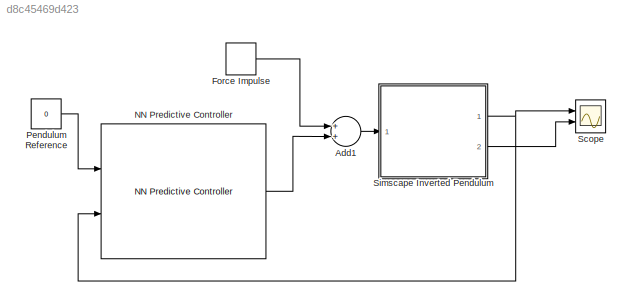
MODEL slx_d8c45469d423
KIND model
BLOCK [Sum] Add1
  InputSameDT = off
  OutDataTypeStr = Inherit: Inherit via internal rule
  Ports = [2, 1]
  SaturateOnIntegerOverflow = off
BLOCK [DiscretePulseGenerator] Force Impulse
  Amplitude = 1000
  Period = 10
  Ports = [0, 1]
  PulseType = Time based
  PulseWidth = 0.01
BLOCK [Reference] NN Predictive Controller  REF=neural/Control Systems/NN Predictive Controller
  B1 = [3.4229281290107396;1.4885006445197408;-0.78178922136363049;0.15468020926256307;0.88460328618358486;-1.9180026772347927;2.6292228329429768]
  B2 = 1.1926159034565735
  IW = [-0.51670339428008627 0.30216359067953968;0.063122064876303174 0.49648019761152751;-0.6011959254398701 0.51569845008084003;-0.33496484915941738 -0.21162981637168918;-1.1329233033622921 -0.79955533605292672;0.94071285967693519 0.41836714397439778;-0.8832550776227267 -0.76281244763460665]
  LW1_2 = [0.69782203805873777 -0.37077760385034442;0.34312334132666389 -0.89671763633998636;1.6999968221153436 -1.1019765395365144;-0.70848254525935916 0.23592009404776221;0.095950316508265771 -0.1506748459104448;0.39004078391021679 1.6160842305809311;0.45342855029825024 -0.028915641644308984]
  LW2_1 = [0.062190244781024681 -1.1043642367666291 1.377462760855878 -1.1466470424192063 -0.44306710436770214 -0.209459787239196 -0.032425765365737637]
  N2 = 7
  Ni = 2
  Nj = 2
  Normalize = 0
  Nu = 2
  Ports = [2, 1]
  S1 = 7
  SourceBlock = neural/Control Systems/NN Predictive Controller
  SourceType = NN Predictive Controller
  Ts = 0.2
  Use_Previous_Weights = 1
  Use_Testing = 0
  Use_validation = 1
  alpha = 0.001
  csrchfun = csrchbac
  epochs = 200
  limit_output = 0
  max_i = 5
  max_i_int = 20
  max_output = Inf
  maxiter = 2
  maxp = 4.2831306231418793
  maxt = 4.2831306231418793
  min_i = -5
  min_i_int = 5
  min_output = -Inf
  minp = -4.1651718639737734
  mint = -3.1344028951578671
  rho = 0.05
  sam_training = 500
  sim_file = Pend_Model_Simscape_oneout
  trainfun = trainlm
BLOCK [Constant] Pendulum Reference
  Value = 0
BLOCK [Scope] Scope
  DataFormat = StructureWithTime
  Floating = off
  NumInputPorts = 2
  Ports = [2]
  SampleTime = 0
  ShowLegends = off
  YMax = 5~5
  YMin = -5~-5
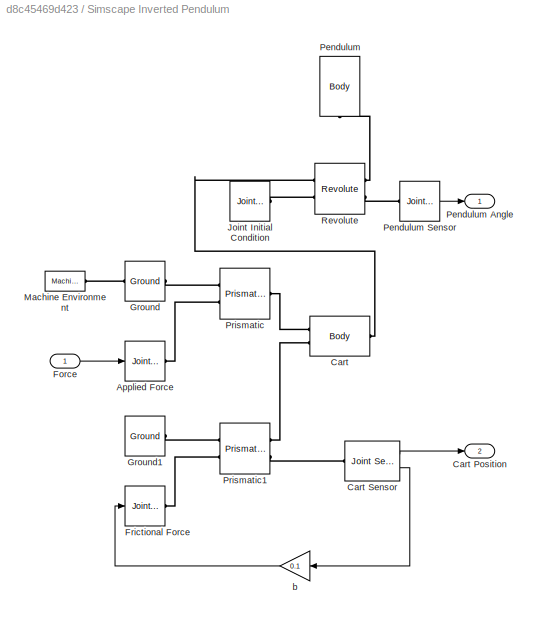
BLOCK [SubSystem] Simscape Inverted Pendulum
  FunctionWithSeparateData = off
  MaskHideContents = off
  MinAlgLoopOccurrences = off
  Opaque = off
  Ports = [1, 2]
  PropExecContextOutsideSubsystem = off
  RTWSystemCode = Auto
  RequestExecContextInheritance = off
BLOCK [Reference] Simscape Inverted Pendulum/Applied Force  REF=mblibv1/Sensors & 
Actuators/Joint Actuator
  AccelerationUnits = m/s^2
  ActiveIO = on
  ActuationStyle = Force
  AngleUnits = deg
  ArcAccelerationUnits = deg/s^2
  ArcVelocityUnits = deg/s
  ClassName = JointActuator
  CoordPositionUnits = m
  DialogClass = MechanicalActuatorBlock
  ForceUnits = N
  PhysicalDomain = Mechanical
  PortType = blob
  Ports = [1, 0, 0, 0, 0, 0, 1]
  Primitive = P1
  ReferenceFrame = Absolute (World)
  SourceBlock = mblibv1/Sensors & \nActuators/Joint Actuator
  SourceType = Joint Actuator
  TorqueUnits = N-m
  UpdateFromCAD = off
  VelocityUnits = m/s
  Width = 1
BLOCK [Reference] Simscape Inverted Pendulum/Cart  REF=mblibv1/Bodies/Body
  AttachedToCS = CG
  BodyColor = [1 0 0]
  BodyColorSelMode = MACHINE_DEFAULT
  CG = Left$CG$[0 0 0]$WORLD$WORLD$m$[0 0 0]$Euler X-Y-Z$deg$WORLD$false$none
  CGPos = [0 0 0]
  CGRot = [0 0 0]
  CS0Pos = []
  CS0Rot = []
  CS10Pos = []
  CS10Rot = []
  CS11Pos = []
  CS11Rot = []
  CS12Pos = []
  CS12Rot = []
  CS13Pos = []
  CS13Rot = []
  CS14Pos = []
  CS14Rot = []
  CS15Pos = []
  CS15Rot = []
  CS16Pos = []
  CS16Rot = []
  CS17Pos = []
  CS17Rot = []
  CS18Pos = []
  CS18Rot = []
  CS19Pos = []
  CS19Rot = []
  CS1Pos = [-1 0 0]
  CS1Rot = [0 0 0]
  CS20Pos = []
  CS20Rot = []
  CS2Pos = [0 0 0]
  CS2Rot = [0 0 0]
  CS3Pos = [0 0.5 0]
  CS3Rot = [0 0 0]
  CS4Pos = [-1 0.5 0]
  CS4Rot = [0 0 0]
  CS5Pos = [-1 -0.5 0]
  CS5Rot = [0 0 0]
  CS6Pos = [1 -0.5 0]
  CS6Rot = [0 0 0]
  CS7Pos = [1 0.5 0]
  CS7Rot = [0 0 0]
  CS8Pos = []
  CS8Rot = []
  CS9Pos = []
  CS9Rot = []
  ClassName = Body
  Density = 1
  DensityUnits = kg/m^3
  DensityUse = false
  DialogClass = MechanicalBodyBlock
  GraphicsMode = MACHINE_DEFAULT
  Inertia = eye(3)
  InertiaUnits = kg*m^2
  LConnTagsString = CS1|CS2
  Mass = 0.5
  MassUnits = kg
  Ports = [0, 0, 0, 0, 0, 2, 1]
  RConnTagsString = CS3
  Shape = Cylinder
  ShapeDims = [1 1]
  ShapeUnits = m
  ShapeUse = false
  SourceBlock = mblibv1/Bodies/Body
  SourceType = Body
  UpdateFromCAD = off
  WorkingFrames = Left$CS1$[-1 0 0]$CG$CG$m$[0 0 0]$Euler X-Y-Z$deg$WORLD$true$none#Left$CS2$[0 0 0]$CG$CG$m$[0 0 0]$Euler X-Y-Z$deg$WORLD$true$none#Right$CS3$[0 0.5 0]$CG$CG$m$[0 0 0]$Euler X-Y-Z$deg$WORLD$true$none#Right$CS4$[-1 0.5 0]$CG$CG$m$[0 0 0]$Euler X-Y-Z$deg$WORLD$false$none#Right$CS5$[-1 -0.5 0]$CG$CG$m$[0 0 0]$Euler X-Y-Z$deg$WORLD$false$none#Right$CS6$[1 -0.5 0]$CG$CG$m$[0 0 0]$Euler X-Y-Z$deg$WORLD$f...<+78ch>
BLOCK [Outport] Simscape Inverted Pendulum/Cart Position
  IconDisplay = Port number
  Port = 2
BLOCK [Reference] Simscape Inverted Pendulum/Cart Sensor  REF=mblibv1/Sensors & 
Actuators/Joint Sensor
  Acceleration = off
  AccelerationUnits = m/s^2
  ActiveIO = on
  Angle = on
  AngleUnits = deg
  ArcAcceleration = off
  ArcAccelerationUnits = deg/s^2
  ArcVelocity = off
  ArcVelocityUnits = deg/s
  ClassName = JointSensor
  CoordPosition = on
  CoordPositionUnits = m
  DialogClass = MechanicalSensorBlock
  Force = off
  ForceUnits = N
  Muxed = off
  OutputVector = [1]
  PhysicalDomain = Mechanical
  PortType = blob
  Ports = [0, 2, 0, 0, 0, 1]
  Pose = off
  Primitive = P1
  Quaternion = on
  QuaternionDDT = off
  QuaternionDT = off
  QuaternionUnits = off
  ReactionForce = off
  ReactionForceUnits = N
  ReactionMoment = off
  ReactionMomentUnits = N*m
  ReactionReferenceFrame = Absolute (World)
  ReactionSensedSide = Base
  ReferenceFrame = Absolute (World)
  SourceBlock = mblibv1/Sensors & \nActuators/Joint Sensor
  SourceType = Joint Sensor
  Torque = off
  TorqueUnits = N*m
  UpdateFromCAD = off
  Velocity = on
  VelocityUnits = m/s
  Width = 2
BLOCK [Inport] Simscape Inverted Pendulum/Force
  IconDisplay = Port number
BLOCK [Reference] Simscape Inverted Pendulum/Frictional Force  REF=mblibv1/Sensors & 
Actuators/Joint Actuator
  AccelerationUnits = m/s^2
  ActiveIO = on
  ActuationStyle = Force
  AngleUnits = deg
  ArcAccelerationUnits = deg/s^2
  ArcVelocityUnits = deg/s
  ClassName = JointActuator
  CoordPositionUnits = m
  DialogClass = MechanicalActuatorBlock
  ForceUnits = N
  PhysicalDomain = Mechanical
  PortType = blob
  Ports = [1, 0, 0, 0, 0, 0, 1]
  Primitive = P1
  ReferenceFrame = Absolute (World)
  SourceBlock = mblibv1/Sensors & \nActuators/Joint Actuator
  SourceType = Joint Actuator
  TorqueUnits = N*m
  UpdateFromCAD = off
  VelocityUnits = m/s
  Width = 1
BLOCK [Reference] Simscape Inverted Pendulum/Ground  REF=mblibv1/Bodies/Ground
  ClassName = Ground
  CoordPosition = [0 0 0]
  CoordPositionUnits = m
  DialogClass = GroundBlock
  LeftPortType = env
  MachineId = [0 0]
  PhysicalDomain = Mechanical
  Ports = [0, 0, 0, 0, 0, 1, 1]
  RightPortType = workingframe
  ShowEnvPort = on
  SourceBlock = mblibv1/Bodies/Ground
  SourceType = Ground
  StateVectorMgrId = -1
  UpdateFromCAD = off
  UserDataPersistent = on
BLOCK [Reference] Simscape Inverted Pendulum/Ground1  REF=mblibv1/Bodies/Ground
  ClassName = Ground
  CoordPosition = [0 0 0]
  CoordPositionUnits = m
  DialogClass = GroundBlock
  LeftPortType = env
  MachineId = [0 0]
  PhysicalDomain = Mechanical
  Ports = [0, 0, 0, 0, 0, 0, 1]
  RightPortType = workingframe
  ShowEnvPort = off
  SourceBlock = mblibv1/Bodies/Ground
  SourceType = Ground
  StateVectorMgrId = -1
  UpdateFromCAD = off
  UserDataPersistent = on
BLOCK [Reference] Simscape Inverted Pendulum/Joint Initial Condition  REF=mblibv1/Sensors & 
Actuators/Joint Initial Condition
  ClassName = InitialCondition
  DialogClass = InitialConditionBlock
  InitialConditions = P1$false$0$m$deg$0$m/s$deg/s#P2$false$0$m$deg$0$m/s$deg/s#P3$false$0$m$deg$0$m/s$deg/s#R1$true$0$m$deg$0$m/s$deg/s#R2$false$0$m$deg$0$m/s$deg/s#R3$false$0$m$deg$0$m/s$deg/s#S$false$0$m$deg$0$m/s$deg/s
  LeftPortType = blob
  P1PIC = 0
  P1VIC = 0
  P2PIC = 0
  P2VIC = 0
  P3PIC = 0
  P3VIC = 0
  PhysicalDomain = mechanical
  Ports = [0, 0, 0, 0, 0, 0, 1]
  R1PIC = 0
  R1VIC = 0
  R2PIC = 0
  R2VIC = 0
  R3PIC = 0
  R3VIC = 0
  RightPortType = blob
  SPIC = 0
  SVIC = 0
  SourceBlock = mblibv1/Sensors & \nActuators/Joint Initial Condition
  SourceType = Joint Initial Condition
  UpdateFromCAD = off
BLOCK [Reference] Simscape Inverted Pendulum/Machine Environment  REF=mblibv1/Bodies/Machine
Environment
  AnalysisType = Forward dynamics
  AngularAssemblyTolerance = 1e-3
  AngularAssemblyToleranceUnits = rad
  BodyColorSelMode = Use model default
  BodyVisualizationType = Use model default body geometries
  ClassName = Environment
  ConstraintAbsTolerance = 1e-4
  ConstraintRelTolerance = 1e-4
  ConstraintSolverType = Stabilizing
  DefaultBodyColor = [1 0 0]
  DialogTemplateClass = MECH.MachineEnvironment
  Dimensionality = Auto-detect
  Gravity = [0 -9.81 0]
  GravityAsSignal = off
  GravityUnits = m/s^2
  LinearAssemblyTolerance = 1e-3
  LinearAssemblyToleranceUnits = m
  PerturbationSize = 1e-5
  PhysicalDomain = Mechanical
  PortType = env
  Ports = [0, 0, 0, 0, 0, 0, 1]
  RedundancyAnalysisTolerance = 1e-14
  RedundancyAnalysisToleranceType = Automatically select tolerance
  SourceBlock = mblibv1/Bodies/Machine\nEnvironment
  SourceType = Machine Environment
  StatePerturbationType = Fixed
  SyncWhenCopied = off
  UseRobustSingularityHandling = off
  VisualizeMachine = on
BLOCK [Reference] Simscape Inverted Pendulum/Pendulum  REF=mblibv1/Bodies/Body
  AttachedToCS = CG
  BodyColor = [0.078431 0.16863 0.54902]
  BodyColorSelMode = COLORPALETTE
  CG = Left$CG$[0 0.3 0]$CS1$CS1$m$[0 0 0]$Euler X-Y-Z$deg$WORLD$false$none
  CGPos = [0 0.3 0]
  CGRot = [0 0 0]
  CS0Pos = []
  CS0Rot = []
  CS10Pos = []
  CS10Rot = []
  CS11Pos = []
  CS11Rot = []
  CS12Pos = []
  CS12Rot = []
  CS13Pos = []
  CS13Rot = []
  CS14Pos = []
  CS14Rot = []
  CS15Pos = []
  CS15Rot = []
  CS16Pos = []
  CS16Rot = []
  CS17Pos = []
  CS17Rot = []
  CS18Pos = []
  CS18Rot = []
  CS19Pos = []
  CS19Rot = []
  CS1Pos = [0 0 0]
  CS1Rot = [0 0 0]
  CS20Pos = []
  CS20Rot = []
  CS2Pos = [0.1 0 0]
  CS2Rot = [0 0 0]
  CS3Pos = [-0.1 0 0]
  CS3Rot = [0 0 0]
  CS4Pos = [-0.1 0.6 0]
  CS4Rot = [0 0 0]
  CS5Pos = [0.1 0.6 0]
  CS5Rot = [0 0 0]
  CS6Pos = []
  CS6Rot = []
  CS7Pos = []
  CS7Rot = []
  CS8Pos = []
  CS8Rot = []
  CS9Pos = []
  CS9Rot = []
  ClassName = Body
  Density = 1
  DensityUnits = kg/m^3
  DensityUse = false
  DialogClass = MechanicalBodyBlock
  GraphicsMode = MACHINE_DEFAULT
  Inertia = 0.006*eye(3)
  InertiaUnits = kg*m^2
  LConnTagsString = CS1
  Mass = 0.2
  MassUnits = kg
  Ports = [0, 0, 0, 0, 0, 1]
  Shape = Cylinder
  ShapeDims = [1 1]
  ShapeUnits = m
  ShapeUse = false
  SourceBlock = mblibv1/Bodies/Body
  SourceType = Body
  UpdateFromCAD = off
  WorkingFrames = Left$CS1$[0 0 0]$Adjoining$Adjoining$m$[0 0 0]$Euler X-Y-Z$deg$WORLD$true$none#Right$CS2$[0.1 0 0]$CS1$CS1$m$[0 0 0]$Euler X-Y-Z$deg$WORLD$false$none#Right$CS3$[-0.1 0 0]$CS1$CS1$m$[0 0 0]$Euler X-Y-Z$deg$WORLD$false$none#Right$CS4$[-0.1 0.6 0]$CS1$CS1$m$[0 0 0]$Euler X-Y-Z$deg$WORLD$false$none#Right$CS5$[0.1 0.6 0]$CS1$CS1$m$[0 0 0]$Euler X-Y-Z$deg$WORLD$false$none
BLOCK [Outport] Simscape Inverted Pendulum/Pendulum Angle
  IconDisplay = Port number
BLOCK [Reference] Simscape Inverted Pendulum/Pendulum Sensor  REF=mblibv1/Sensors & 
Actuators/Joint Sensor
  Acceleration = off
  AccelerationUnits = m/s^2
  ActiveIO = on
  Angle = on
  AngleUnits = rad
  ArcAcceleration = off
  ArcAccelerationUnits = deg/s^2
  ArcVelocity = off
  ArcVelocityUnits = deg/s
  ClassName = JointSensor
  CoordPosition = on
  CoordPositionUnits = m
  DialogClass = MechanicalSensorBlock
  Force = off
  ForceUnits = N
  Muxed = on
  OutputVector = [1]
  PhysicalDomain = Mechanical
  PortType = blob
  Ports = [0, 1, 0, 0, 0, 1]
  Pose = off
  Primitive = R1
  Quaternion = on
  QuaternionDDT = off
  QuaternionDT = off
  QuaternionUnits = off
  ReactionForce = off
  ReactionForceUnits = N
  ReactionMoment = off
  ReactionMomentUnits = N*m
  ReactionReferenceFrame = Absolute (World)
  ReactionSensedSide = Base
  ReferenceFrame = Absolute (World)
  SourceBlock = mblibv1/Sensors & \nActuators/Joint Sensor
  SourceType = Joint Sensor
  Torque = off
  TorqueUnits = N*m
  UpdateFromCAD = off
  Velocity = off
  VelocityUnits = m/s
  Width = 1
BLOCK [Reference] Simscape Inverted Pendulum/Prismatic  REF=mblibv1/Joints/Prismatic
  ClassName = Joint
  CutJoint = off
  DialogClass = JointBlock
  LConnTagsString = __newl0|SA1
  MarkAsCut = off
  NumSAPorts = 1
  P1Axis = [1 0 0]
  Ports = [0, 0, 0, 0, 0, 2, 1]
  PrimitiveProps = P1$World$[1 0 0]$prismatic
  Primitives = prismatic
  RConnTagsString = __newr0
  SourceBlock = mblibv1/Joints/Prismatic
  SourceType = Prismatic
  UpdateFromCAD = off
BLOCK [Reference] Simscape Inverted Pendulum/Prismatic1  REF=mblibv1/Joints/Prismatic
  ClassName = Joint
  CutJoint = off
  DialogClass = JointBlock
  LConnTagsString = __newl0|SA1
  MarkAsCut = off
  NumSAPorts = 2
  P1Axis = [1 0 0]
  Ports = [0, 0, 0, 0, 0, 2, 2]
  PrimitiveProps = P1$World$[1 0 0]$prismatic
  Primitives = prismatic
  RConnTagsString = __newr0|SA1
  SourceBlock = mblibv1/Joints/Prismatic
  SourceType = Prismatic
  UpdateFromCAD = off
BLOCK [Reference] Simscape Inverted Pendulum/Revolute  REF=mblibv1/Joints/Revolute
  ClassName = Joint
  CutJoint = off
  DialogClass = JointBlock
  LConnTagsString = __newl0|SA1
  MarkAsCut = off
  NumSAPorts = 2
  Ports = [0, 0, 0, 0, 0, 2, 2]
  PrimitiveProps = R1$World$[0 0 1]$revolute
  Primitives = prismatic
  R1Axis = [0 0 1]
  RConnTagsString = __newr0|SA1
  SourceBlock = mblibv1/Joints/Revolute
  SourceType = Revolute
  UpdateFromCAD = off
BLOCK [Gain] Simscape Inverted Pendulum/b
  Gain = 0.1
  OutDataTypeStr = Inherit: Inherit via internal rule
  ParamDataTypeStr = Inherit: Inherit via internal rule
  SaturateOnIntegerOverflow = off
LINE Add1:1 -> Simscape Inverted Pendulum:1
LINE Force Impulse:1 -> Add1:1
LINE NN Predictive Controller:1 -> Add1:2
LINE Pendulum Reference:1 -> NN Predictive Controller:1
LINE Simscape Inverted Pendulum/Cart Sensor:1 -> Simscape Inverted Pendulum/Cart Position:1
LINE Simscape Inverted Pendulum/Cart Sensor:2 -> Simscape Inverted Pendulum/b:1
LINE Simscape Inverted Pendulum/Force:1 -> Simscape Inverted Pendulum/Applied Force:1
LINE Simscape Inverted Pendulum/Pendulum Sensor:1 -> Simscape Inverted Pendulum/Pendulum Angle:1
LINE Simscape Inverted Pendulum/b:1 -> Simscape Inverted Pendulum/Frictional Force:1
NET Simscape Inverted Pendulum:1 -> NN Predictive Controller:2, Scope:1
LINE Simscape Inverted Pendulum:2 -> Scope:2
PLINE Simscape Inverted Pendulum/Applied Force:RConn1 -- Simscape Inverted Pendulum/Prismatic:LConn2
PLINE Simscape Inverted Pendulum/Cart Sensor:LConn1 -- Simscape Inverted Pendulum/Prismatic1:RConn2
PLINE Simscape Inverted Pendulum/Cart:LConn1 -- Simscape Inverted Pendulum/Prismatic:RConn1
PLINE Simscape Inverted Pendulum/Cart:LConn2 -- Simscape Inverted Pendulum/Prismatic1:RConn1
PLINE Simscape Inverted Pendulum/Cart:RConn1 -- Simscape Inverted Pendulum/Revolute:LConn1
PLINE Simscape Inverted Pendulum/Frictional Force:RConn1 -- Simscape Inverted Pendulum/Prismatic1:LConn2
PLINE Simscape Inverted Pendulum/Ground1:RConn1 -- Simscape Inverted Pendulum/Prismatic1:LConn1
PLINE Simscape Inverted Pendulum/Ground:LConn1 -- Simscape Inverted Pendulum/Machine Environment:RConn1
PLINE Simscape Inverted Pendulum/Ground:RConn1 -- Simscape Inverted Pendulum/Prismatic:LConn1
PLINE Simscape Inverted Pendulum/Joint Initial Condition:RConn1 -- Simscape Inverted Pendulum/Revolute:LConn2
PLINE Simscape Inverted Pendulum/Pendulum Sensor:LConn1 -- Simscape Inverted Pendulum/Revolute:RConn2
PLINE Simscape Inverted Pendulum/Pendulum:LConn1 -- Simscape Inverted Pendulum/Revolute:RConn1
note: NET lines group one-source signal fan-out (src -> all destinations, sorted); 1:1 wires keep LINE
